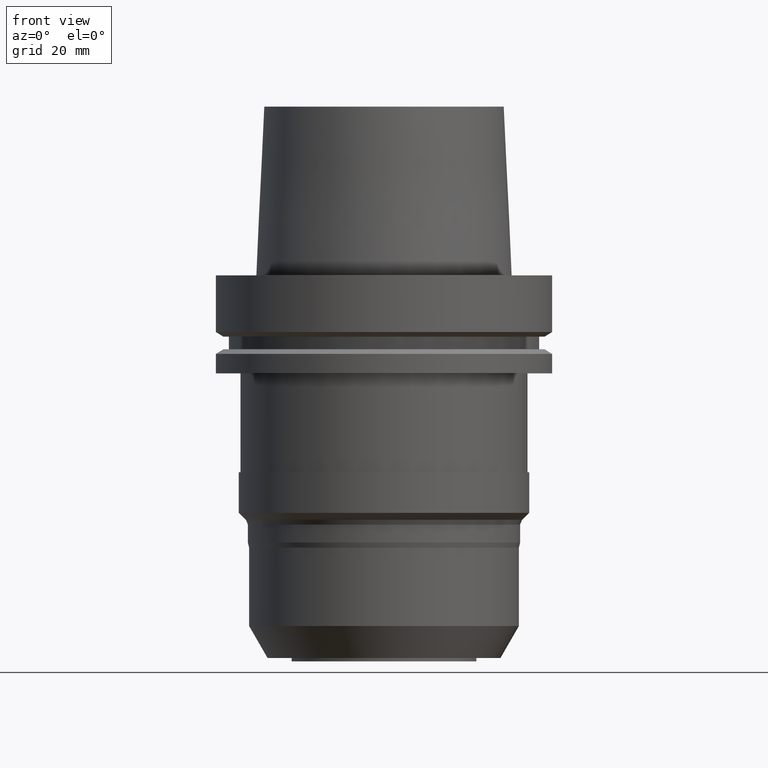
[diagram: clean part render]
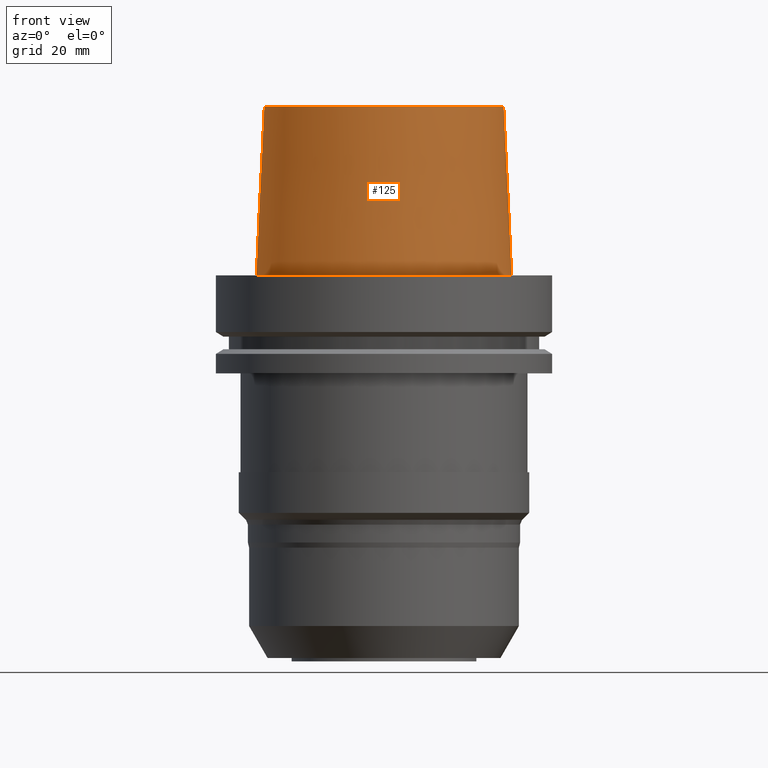
[diagram: same view with one face highlighted and labeled with its STEP entity id]
A machine part, front view. The second image highlights one B-rep face of the part: STEP entity #125.
In plain terms, the highlighted conical surface has half-angle 2.862 deg.
Its self-contained STEP definition (entity closure, byte-faithful):
#73=EDGE_CURVE('Unnamed[1]',#207,#207,#208,.T.);
#125=ADVANCED_FACE('Unnamed[1]',(#288,#289),#290,.T.);
#129=EDGE_CURVE('Unnamed[1]',#295,#295,#296,.T.);
#207=VERTEX_POINT('',#397);
#208=CIRCLE('',#398,37.9999999999997);
#288=FACE_BOUND('',#498,.T.);
#289=FACE_BOUND('',#499,.T.);
#290=CONICAL_SURFACE('',#500,36.7499999999998,0.0499583957219389);
#295=VERTEX_POINT('',#507);
#296=CIRCLE('',#508,35.4999999999999);
#397=CARTESIAN_POINT('',(-4.68386162474972E-031,37.9999999999997,4.6536578367599E-015));
#398=AXIS2_PLACEMENT_3D('',#623,#624,#625);
#498=EDGE_LOOP('',(#715));
#499=EDGE_LOOP('',(#716));
#500=AXIS2_PLACEMENT_3D('',#717,#718,#719);
#507=CARTESIAN_POINT('',(-3.06161699786838E-015,35.4999999999998,50.0));
#508=AXIS2_PLACEMENT_3D('',#723,#724,#725);
#623=CARTESIAN_POINT('',(8.70163887006011E-031,-4.95400951266375E-014,-1.4210854715202E-014));
#624=DIRECTION('',(6.12323399573677E-017,5.38768000306608E-016,-1.0));
#625=DIRECTION('',(-3.78171780836933E-032,1.0,5.38768000306608E-016));
#715=ORIENTED_EDGE('',*,*,#73,.F.);
#716=ORIENTED_EDGE('',*,*,#129,.T.);
#717=CARTESIAN_POINT('',(-1.53080849893419E-015,-6.30092951343037E-014,25.0));
#718=DIRECTION('',(6.12323399573676E-017,5.38768000306685E-016,-1.0));
#719=DIRECTION('',(-3.78171780837016E-032,1.0,5.38768000306685E-016));
#723=CARTESIAN_POINT('',(-3.06161699786838E-015,-7.64784951419698E-014,50.0));
#724=DIRECTION('',(6.12323399573677E-017,5.38768000306677E-016,-1.0));
#725=DIRECTION('',(-3.78171780837004E-032,1.0,5.38768000306677E-016));